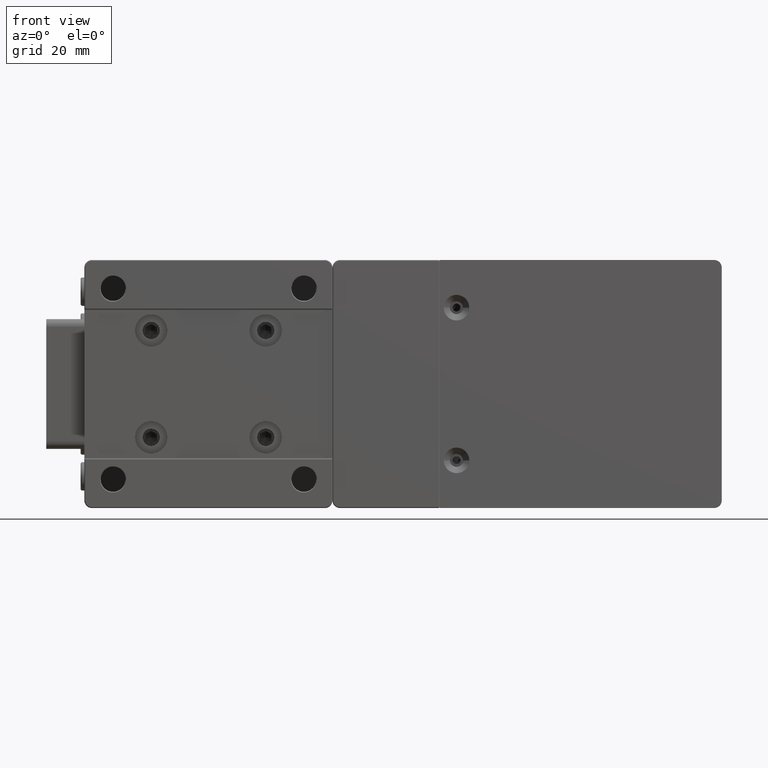
[diagram: clean part render]
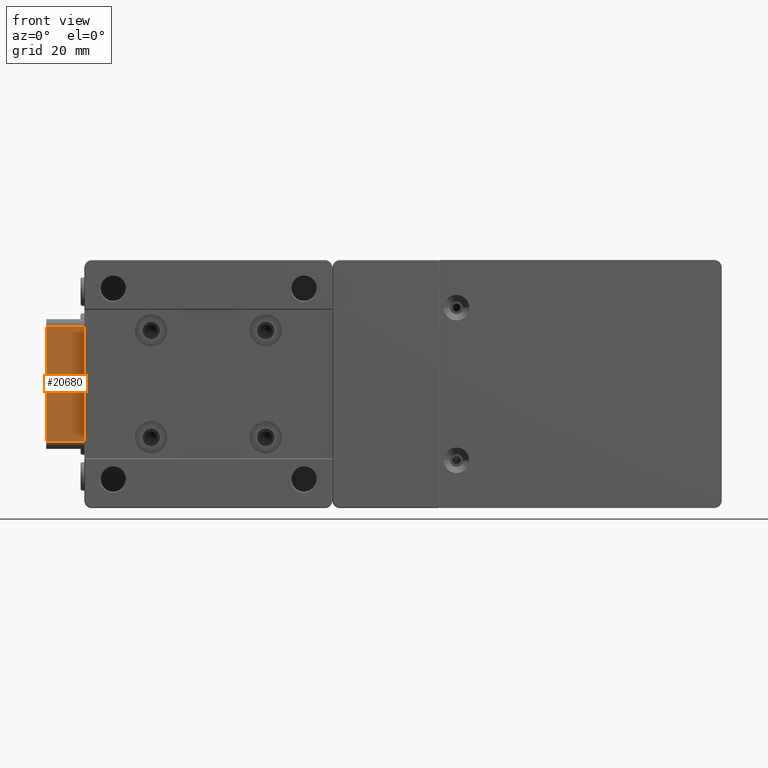
[diagram: same view with one face highlighted and labeled with its STEP entity id]
A machine part, front view. The second image highlights one B-rep face of the part: STEP entity #20680.
In plain terms, the highlighted planar face has unit normal (-0, 1, 0).
Its self-contained STEP definition (entity closure, byte-faithful):
#8 = DIRECTION ( 'NONE',  ( -1.000000000000000000, 0.000000000000000000, 0.000000000000000000 ) ) ;
#32 = DIRECTION ( 'NONE',  ( 1.000000000000000000, 0.000000000000000000, 0.000000000000000000 ) ) ;
#317 = CARTESIAN_POINT ( 'NONE',  ( -146.9861517713140131, -4.497789830436274450, -15.00000000000000000 ) ) ;
#1230 = CARTESIAN_POINT ( 'NONE',  ( -146.9861517713140131, -4.497789830436274450, -17.00000000000000000 ) ) ;
#1390 = LINE ( 'NONE', #6464, #43669 ) ;
#1823 = EDGE_CURVE ( 'NONE', #46014, #44601, #11924, .T. ) ;
#3990 = CARTESIAN_POINT ( 'NONE',  ( -146.9861517713140131, -4.497789830436274450, 15.00000000000000000 ) ) ;
#4460 = DIRECTION ( 'NONE',  ( 0.000000000000000000, 0.000000000000000000, 1.000000000000000000 ) ) ;
#5021 = CARTESIAN_POINT ( 'NONE',  ( -146.9861517713140131, -4.497789830436274450, -15.00000000000000000 ) ) ;
#6464 = CARTESIAN_POINT ( 'NONE',  ( -146.9861517713140131, -4.497789830436274450, -17.00000000000000000 ) ) ;
#8511 = LINE ( 'NONE', #3990, #14008 ) ;
#9033 = EDGE_CURVE ( 'NONE', #46014, #47145, #1390, .T. ) ;
#9729 = PLANE ( 'NONE',  #46076 ) ;
#11924 = LINE ( 'NONE', #317, #46577 ) ;
#12245 = EDGE_CURVE ( 'NONE', #44601, #33957, #43154, .T. ) ;
#13857 = EDGE_LOOP ( 'NONE', ( #28164, #33274, #21647, #35576 ) ) ;
#14008 = VECTOR ( 'NONE', #8, 1000.000000000000000 ) ;
#18317 = CARTESIAN_POINT ( 'NONE',  ( -136.9861517713140131, -4.497789830436274450, -15.00000000000000000 ) ) ;
#18735 = EDGE_CURVE ( 'NONE', #33957, #47145, #8511, .T. ) ;
#19338 = CARTESIAN_POINT ( 'NONE',  ( -136.9861517713140131, -4.497789830436274450, 15.00000000000000000 ) ) ;
#20680 = ADVANCED_FACE ( 'NONE', ( #22984 ), #9729, .F. ) ;
#21647 = ORIENTED_EDGE ( 'NONE', *, *, #9033, .F. ) ;
#22984 = FACE_OUTER_BOUND ( 'NONE', #13857, .T. ) ;
#28164 = ORIENTED_EDGE ( 'NONE', *, *, #12245, .T. ) ;
#31614 = DIRECTION ( 'NONE',  ( 0.000000000000000000, 0.000000000000000000, 1.000000000000000000 ) ) ;
#33274 = ORIENTED_EDGE ( 'NONE', *, *, #18735, .T. ) ;
#33957 = VERTEX_POINT ( 'NONE', #19338 ) ;
#35576 = ORIENTED_EDGE ( 'NONE', *, *, #1823, .T. ) ;
#39210 = CARTESIAN_POINT ( 'NONE',  ( -136.9861517713140131, -4.497789830436274450, -17.00000000000000000 ) ) ;
#39945 = DIRECTION ( 'NONE',  ( 1.000000000000000000, 0.000000000000000000, 0.000000000000000000 ) ) ;
#43154 = LINE ( 'NONE', #39210, #46494 ) ;
#43669 = VECTOR ( 'NONE', #31614, 1000.000000000000000 ) ;
#44601 = VERTEX_POINT ( 'NONE', #18317 ) ;
#44746 = DIRECTION ( 'NONE',  ( -0.000000000000000000, 1.000000000000000000, 0.000000000000000000 ) ) ;
#46014 = VERTEX_POINT ( 'NONE', #5021 ) ;
#46076 = AXIS2_PLACEMENT_3D ( 'NONE', #1230, #44746, #39945 ) ;
#46494 = VECTOR ( 'NONE', #4460, 1000.000000000000000 ) ;
#46577 = VECTOR ( 'NONE', #32, 1000.000000000000000 ) ;
#47145 = VERTEX_POINT ( 'NONE', #54543 ) ;
#54543 = CARTESIAN_POINT ( 'NONE',  ( -146.9861517713140131, -4.497789830436274450, 15.00000000000000000 ) ) ;